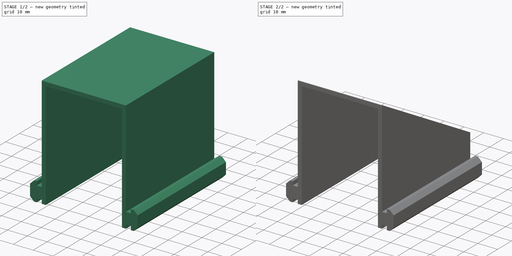
[diagram: build sequence overview — one tinted view per stage of 2, left to right]
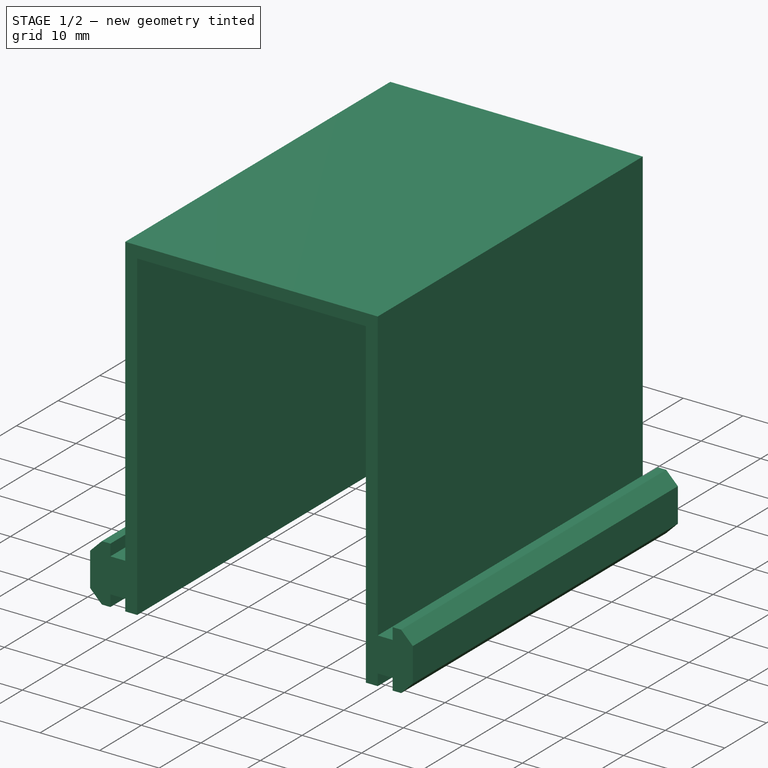
[diagram: stage 1 of 2 — iso view after this stage's code; geometry added in this stage tinted green]
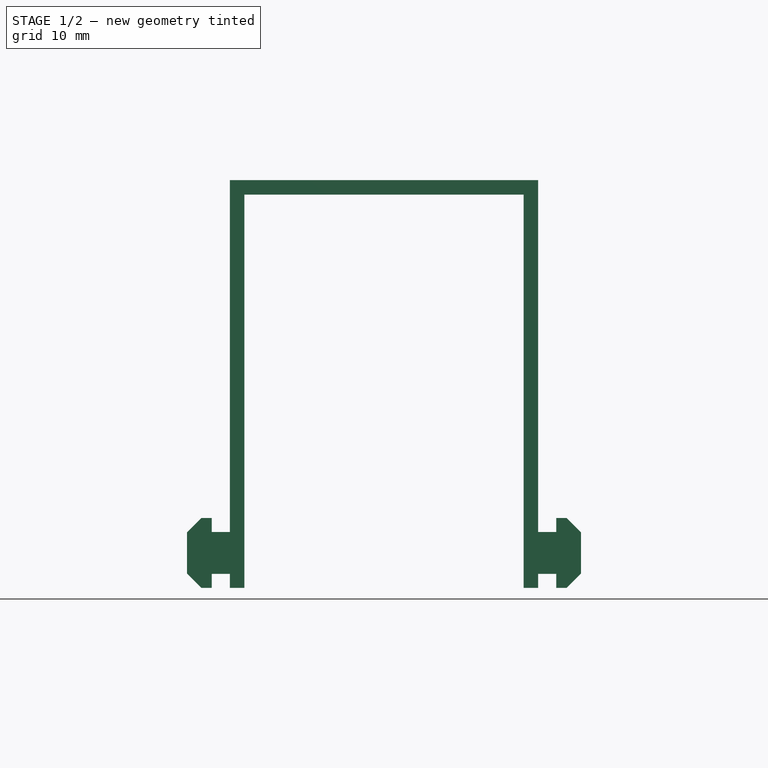
[diagram: stage 1 of 2 — front view after this stage's code; geometry added in this stage tinted green]
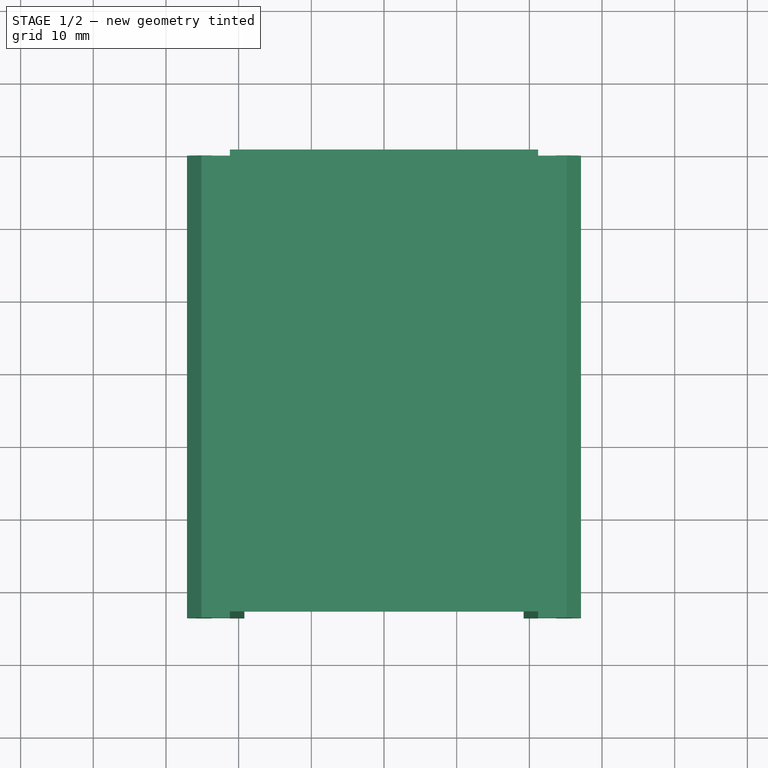
[diagram: stage 1 of 2 — top view after this stage's code; geometry added in this stage tinted green]
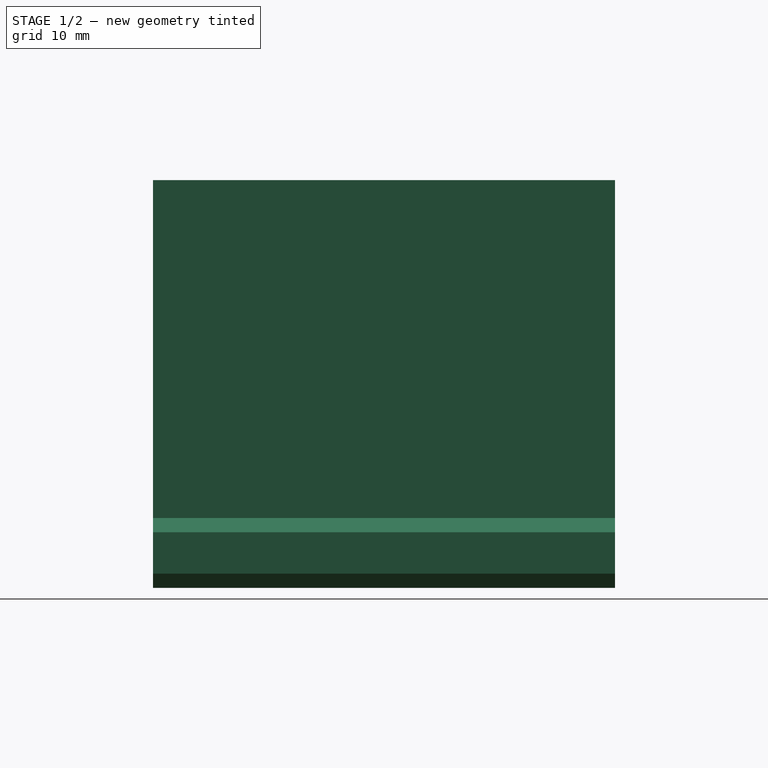
[diagram: stage 1 of 2 — right view after this stage's code; geometry added in this stage tinted green]
FCSTD DOCUMENT  (FreeCAD 1.0R39109 (Git))
Label: 06 Screen Mount Rail
License: All rights reserved
LicenseURL: https://en.wikipedia.org/wiki/All_rights_reserved
objects: Sketcher::SketchObject×2, PartDesign::Pad×1, PartDesign::Pocket×1, PartDesign::Body×1
note: 11 computed .brp shape members not serialized (recipe doc carries the construction recipe); baked Part::Feature solids carry a one-line shape summary decoded from their .brp

FEATURE [Sketcher::SketchObject] Sketch
  ArcFitTolerance = 1e-06
  AttachmentSupport = -> [XZ_Plane]
  FullyConstrained = true
  MakeInternals = false
  MapMode = 5
  Placement = pos=(0,0,0) rot=(1,0,0;1.5708rad)
  sketch-geometry (40):
    g0: LineSegment StartX=-21.2042 StartY=0 StartZ=0 EndX=-21.2042 EndY=1.93 EndZ=0
    g1: LineSegment StartX=-21.2042 StartY=1.93 StartZ=0 EndX=-23.7042 EndY=1.93 EndZ=0
    g2: LineSegment StartX=-23.7042 StartY=1.93 StartZ=0 EndX=-23.7042 EndY=0 EndZ=0
    g3: LineSegment StartX=-23.7042 StartY=0 StartZ=0 EndX=-25.1342 EndY=0 EndZ=0
    g4: LineSegment StartX=-25.1342 StartY=0 StartZ=0 EndX=-27.1 EndY=1.96576 EndZ=0
    g5: LineSegment StartX=-27.1 StartY=1.96576 StartZ=0 EndX=-27.1 EndY=7.65576 EndZ=0
    g6: LineSegment StartX=-27.1 StartY=7.65576 StartZ=0 EndX=-25.1342 EndY=9.62151 EndZ=0
    g7: LineSegment StartX=-25.1342 StartY=9.62151 StartZ=0 EndX=-23.7042 EndY=9.62151 EndZ=0
    g8: LineSegment StartX=-23.7042 StartY=9.62151 StartZ=0 EndX=-23.7042 EndY=7.69151 EndZ=0
    g9: LineSegment StartX=-23.7042 StartY=7.69151 StartZ=0 EndX=-21.2042 EndY=7.69151 EndZ=0
    g10: LineSegment StartX=-21.2042 StartY=7.69151 StartZ=0 EndX=-21.2042 EndY=9.62 EndZ=0
    g11: LineSegment StartX=-21.2042 StartY=9.62 StartZ=0 EndX=-19.2042 EndY=9.62 EndZ=0
    g12: LineSegment StartX=-19.2042 StartY=9.62 StartZ=0 EndX=-19.2042 EndY=0 EndZ=0
    g13: LineSegment StartX=-19.2042 StartY=0 StartZ=0 EndX=-21.2042 EndY=0 EndZ=0
    g14: LineSegment StartX=19.2042 StartY=9.62 StartZ=0 EndX=19.2042 EndY=0 EndZ=0
    g15: LineSegment StartX=19.2042 StartY=0 StartZ=0 EndX=21.2042 EndY=0 EndZ=0
    g16: LineSegment StartX=21.2042 StartY=0 StartZ=0 EndX=21.2042 EndY=1.93 EndZ=0
    g17: LineSegment StartX=21.2042 StartY=1.93 StartZ=0 EndX=23.7042 EndY=1.93 EndZ=0
    g18: LineSegment StartX=23.7042 StartY=1.93 StartZ=0 EndX=23.7042 EndY=0 EndZ=0
    g19: LineSegment StartX=23.7042 StartY=0 StartZ=0 EndX=25.1342 EndY=0 EndZ=0
    g20: LineSegment StartX=25.1342 StartY=0 StartZ=0 EndX=27.1 EndY=1.96576 EndZ=0
    g21: LineSegment StartX=27.1 StartY=1.96576 StartZ=0 EndX=27.1 EndY=7.65576 EndZ=0
    g22: LineSegment StartX=27.1 StartY=7.65576 StartZ=0 EndX=25.1342 EndY=9.62151 EndZ=0
    g23: LineSegment StartX=25.1342 StartY=9.62151 StartZ=0 EndX=23.7042 EndY=9.62151 EndZ=0
    g24: LineSegment StartX=23.7042 StartY=9.62151 StartZ=0 EndX=23.7042 EndY=7.69151 EndZ=0
    g25: LineSegment StartX=23.7042 StartY=7.69151 StartZ=0 EndX=21.2042 EndY=7.69151 EndZ=0
    g26: LineSegment StartX=21.2042 StartY=7.69151 StartZ=0 EndX=21.2042 EndY=9.62 EndZ=0
    g27: LineSegment StartX=21.2042 StartY=9.62 StartZ=0 EndX=19.2042 EndY=9.62 EndZ=0
    g28: LineSegment StartX=19.2042 StartY=56.12 StartZ=0 EndX=19.2042 EndY=9.62 EndZ=0
    g29: LineSegment StartX=19.2042 StartY=9.62 StartZ=0 EndX=21.2042 EndY=9.62 EndZ=0
    g30: LineSegment StartX=21.2042 StartY=9.62 StartZ=0 EndX=21.2042 EndY=56.12 EndZ=0
    g31: LineSegment StartX=21.2042 StartY=56.12 StartZ=0 EndX=19.2042 EndY=56.12 EndZ=0
    g32: LineSegment StartX=-21.2042 StartY=9.62 StartZ=0 EndX=-19.2042 EndY=9.62 EndZ=0
    g33: LineSegment StartX=-19.2042 StartY=9.62 StartZ=0 EndX=-19.2042 EndY=56.12 EndZ=0
    g34: LineSegment StartX=-19.2042 StartY=56.12 StartZ=0 EndX=-21.2042 EndY=56.12 EndZ=0
    g35: LineSegment StartX=-21.2042 StartY=56.12 StartZ=0 EndX=-21.2042 EndY=9.62 EndZ=0
    g36: LineSegment StartX=-19.2042 StartY=56.12 StartZ=0 EndX=19.2042 EndY=56.12 EndZ=0
    g37: LineSegment StartX=19.2042 StartY=56.12 StartZ=0 EndX=19.2042 EndY=54.12 EndZ=0
    g38: LineSegment StartX=19.2042 StartY=54.12 StartZ=0 EndX=-19.2042 EndY=54.12 EndZ=0
    g39: LineSegment StartX=-19.2042 StartY=54.12 StartZ=0 EndX=-19.2042 EndY=56.12 EndZ=0
  constraints (117):
    c: PointOnObject(g0,g-1)
    c: Vertical(g0)
    c: Coincident(g0,g1)
    c: Coincident(g1,g2)
    c: Vertical(g2)
    c: Coincident(g2,g3)
    c: PointOnObject(g3,g-1)
    c: Coincident(g3,g4)
    c: Coincident(g4,g5)
    c: Vertical(g5)
    c: Coincident(g5,g6)
    c: Coincident(g6,g7)
    c: Horizontal(g7)
    c: Coincident(g7,g8)
    c: Vertical(g8)
    c: Coincident(g8,g9)
    c: Horizontal(g9)
    c: Coincident(g9,g10)
    c: Horizontal(g11)
    c: Coincident(g11,g12)
    c: Coincident(g12,g13)
    c: Coincident(g13,g0)
    c: Horizontal(g13)
    c: Vertical(g12)
    c: Vertical(g10)
    c: Horizontal(g1)
    c: Horizontal(g3)
    c: Distance(g13) = 2
    c: Distance(g11) = 2
    c: Distance(g0) = 1.93
    c: Distance(g1) = 2.5
    c: Distance(g9) = 2.5
    c: Distance(g3) = 1.43
    c: Distance(g7) = 1.43
    c: Distance(g4) = 2.78
    c: Distance(g6) = 2.78
    c: Distance(g5) = 5.69
    c: Angle(g-1,g6) = 0.785398
    c: DistanceX(g4,g-1) = 27.1
    c: PointOnObject(g14,g-1)
    c: Vertical(g14)
    c: Coincident(g14,g15)
    c: PointOnObject(g15,g-1)
    c: Coincident(g15,g16)
    c: Coincident(g16,g17)
    c: Horizontal(g17)
    c: Coincident(g17,g18)
    c: PointOnObject(g18,g-1)
    c: Vertical(g18)
    c: Coincident(g18,g19)
    c: PointOnObject(g19,g-1)
    c: Coincident(g19,g20)
    c: Coincident(g20,g21)
    c: Vertical(g21)
    c: Coincident(g21,g22)
    c: Coincident(g22,g23)
    c: Coincident(g23,g24)
    c: Coincident(g24,g25)
    c: Coincident(g25,g26)
    c: Coincident(g26,g27)
    c: Coincident(g27,g14)
    c: Horizontal(g25)
    c: Horizontal(g27)
    c: Horizontal(g23)
    c: Vertical(g16)
    c: Vertical(g26)
    c: Vertical(g24)
    c: Angle(g20,g-1) = 2.35619
    c: Angle(g22,g-1) = 0.785398
    c: Distance(g15) = 2
    c: Distance(g27) = 2
    c: Distance(g25) = 2.5
    c: Distance(g17) = 2.5
    c: Distance(g24) = 1.93
    c: Distance(g18) = 1.93
    c: Distance(g22) = 2.78
    c: Distance(g20) = 2.78
    c: Distance(g19) = 1.43
    c: Distance(g21) = 5.69
    c: Distance(g14) = 9.62
    c: DistanceX(g-1,g20) = 27.1
    c: Coincident(g28,g29)
    c: Coincident(g29,g30)
    c: Coincident(g30,g31)
    c: Coincident(g31,g28)
    c: Vertical(g28)
    c: Vertical(g30)
    c: Horizontal(g29)
    c: Horizontal(g31)
    c: Distance(g28,g30) = 2
    c: Distance(g29,g31) = 46.5
    c: Coincident(g29,g26)
    c: Distance(g8) = 1.93
    c: DistanceY(g12,g12) = 9.62
    c: Coincident(g10,g11)
    c: Coincident(g32,g33)
    c: Coincident(g33,g34)
    c: Coincident(g34,g35)
    c: Coincident(g35,g32)
    c: Horizontal(g32)
    c: Horizontal(g34)
    c: Vertical(g33)
    c: Vertical(g35)
    c: Distance(g33,g35) = 2
    c: Distance(g32,g34) = 46.5
    c: DistanceY(g-1,g34) = 56.12
    c: DistanceX(g10,g32) = 0
    c: Coincident(g33,g36)
    c: Coincident(g36,g28)
    c: Coincident(g36,g37)
    c: PointOnObject(g37,g28)
    c: Coincident(g37,g38)
    c: PointOnObject(g38,g33)
    c: Horizontal(g38)
    c: Coincident(g38,g39)
    c: Coincident(g39,g36)
    c: Distance(g38,g33) = 2
FEATURE [PartDesign::Pad] Pad
  Direction = (0,-1,2e-16)
  Length = 63.57
  Length2 = 10
  Placement = pos=(0,0,0) rot=(1,0,0;1.5708rad)
  Profile = -> Sketch
  ReferenceAxis = -> Sketch [N_Axis]
  Refine = true
  Suppressed = false
  Type = 0
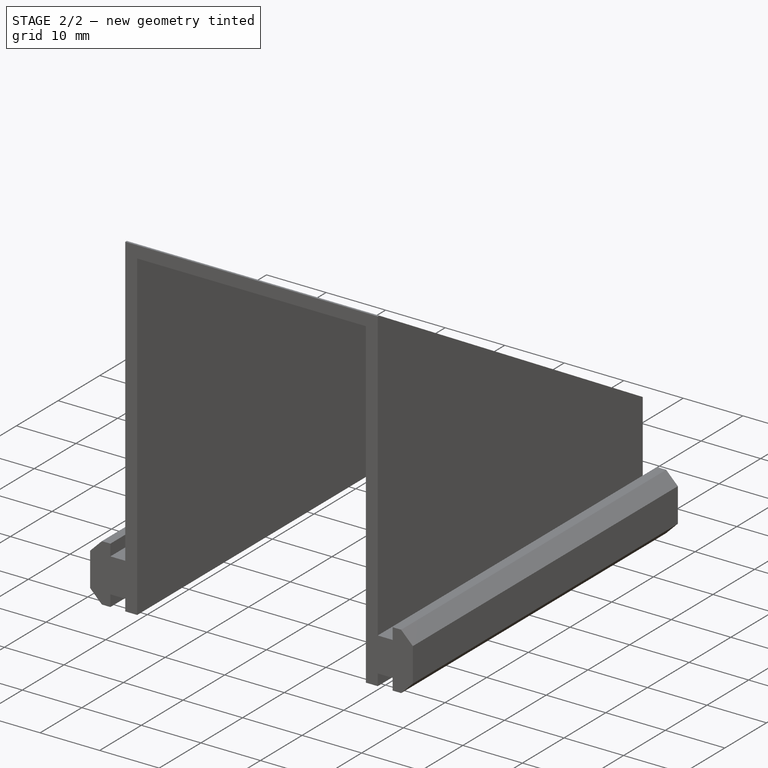
[diagram: stage 2 of 2 — iso view after this stage's code; geometry added in this stage tinted green]
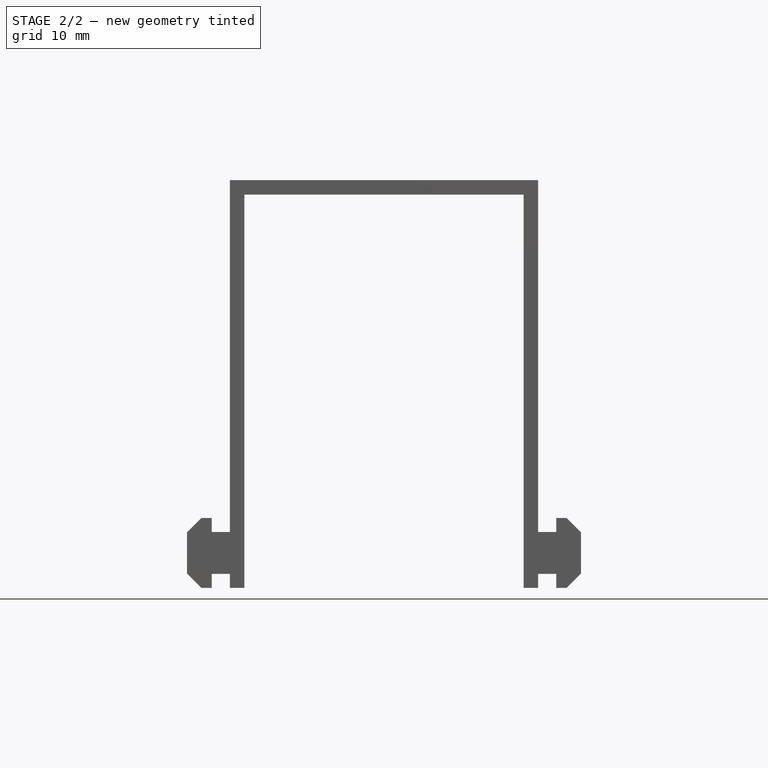
[diagram: stage 2 of 2 — front view after this stage's code; geometry added in this stage tinted green]
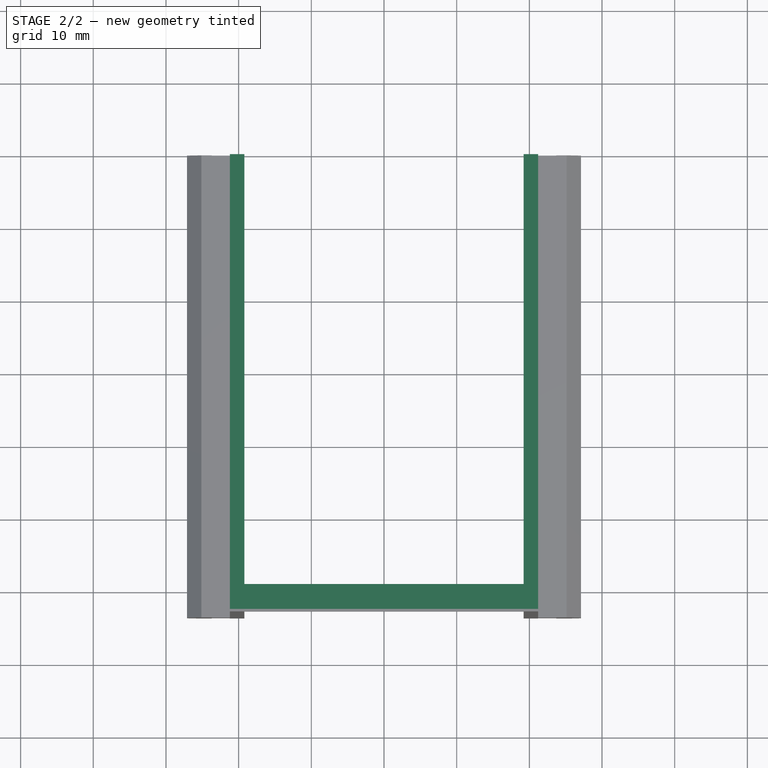
[diagram: stage 2 of 2 — top view after this stage's code; geometry added in this stage tinted green]
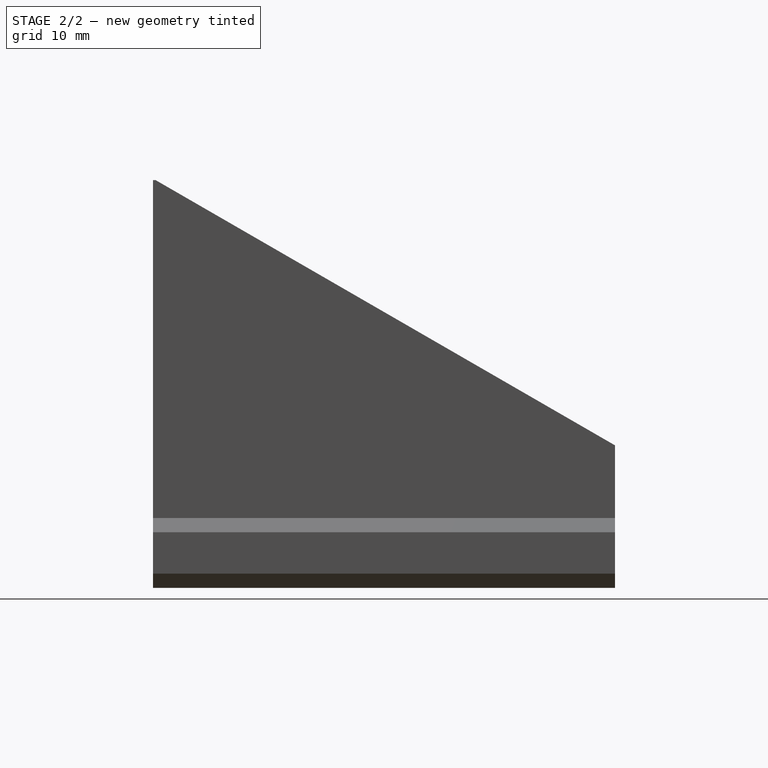
[diagram: stage 2 of 2 — right view after this stage's code; geometry added in this stage tinted green]
FEATURE [Sketcher::SketchObject] Sketch001
  ArcFitTolerance = 1e-06
  AttachmentSupport = -> [Pad]
  FullyConstrained = true
  MakeInternals = false
  MapMode = 5
  Placement = pos=(-21.2042,0,0) rot=(0.707107,0,-0.707107;3.14159rad)
  sketch-geometry (3):
    g0: LineSegment StartX=-19.62 StartY=0 StartZ=0 EndX=-56.62 EndY=64.0859 EndZ=0
    g1: LineSegment StartX=-19.62 StartY=0 StartZ=0 EndX=-56.62 EndY=0 EndZ=0
    g2: LineSegment StartX=-56.62 StartY=0 StartZ=0 EndX=-56.62 EndY=64.0859 EndZ=0
  constraints (9):
    c: Distance(g0) = 74
    c: PointOnObject(g0,g-1)
    c: DistanceX(g0,g-1) = 19.62
    c: Angle(g-1,g0) = 2.0944
    c: Coincident(g1,g0)
    c: PointOnObject(g1,g-1)
    c: Coincident(g2,g1)
    c: Coincident(g2,g0)
    c: Vertical(g2)
FEATURE [PartDesign::Pocket] Pocket
  BaseFeature = -> Pad
  Direction = (1,0,2e-16)
  Length = 5
  Length2 = 5
  Placement = pos=(0,0,0) rot=(1,0,0;1.5708rad)
  Profile = -> Sketch001
  ReferenceAxis = -> Sketch001 [N_Axis]
  Refine = true
  Suppressed = false
  Type = 1
FEATURE [PartDesign::Body] Body
  AllowCompound = false
  Group = -> [Sketch,Pad,Sketch001,Pocket]
  Origin = -> Origin
  Tip = -> Pocket
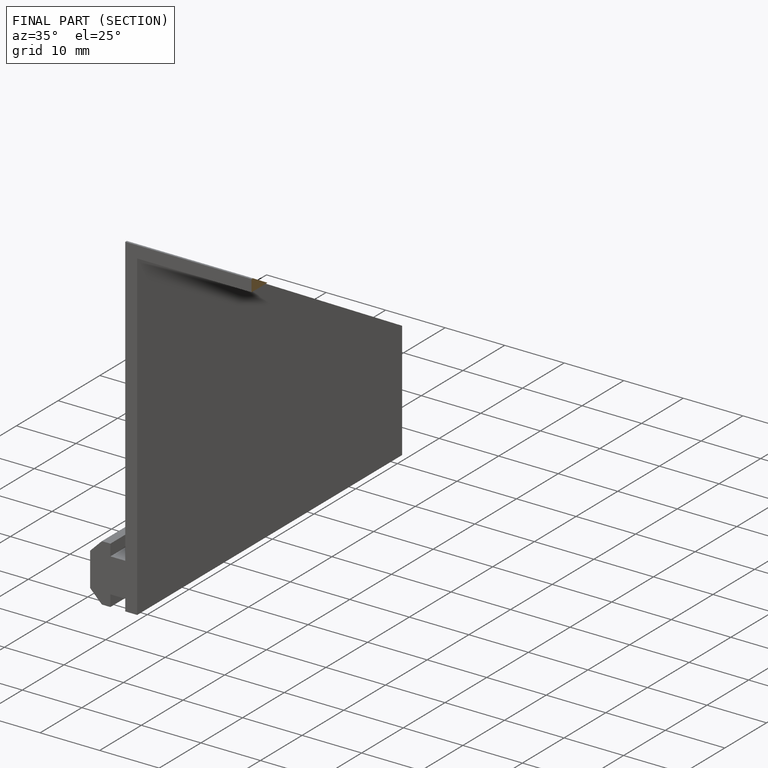
[diagram: finished part — half-section view (interior)]
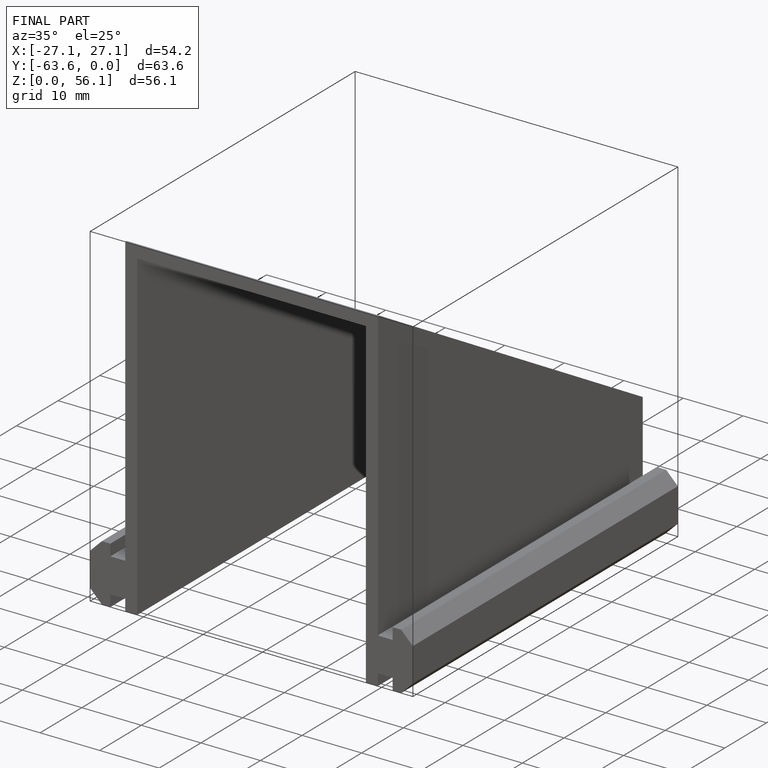
[diagram: finished part — iso view with bounding-box wireframe]
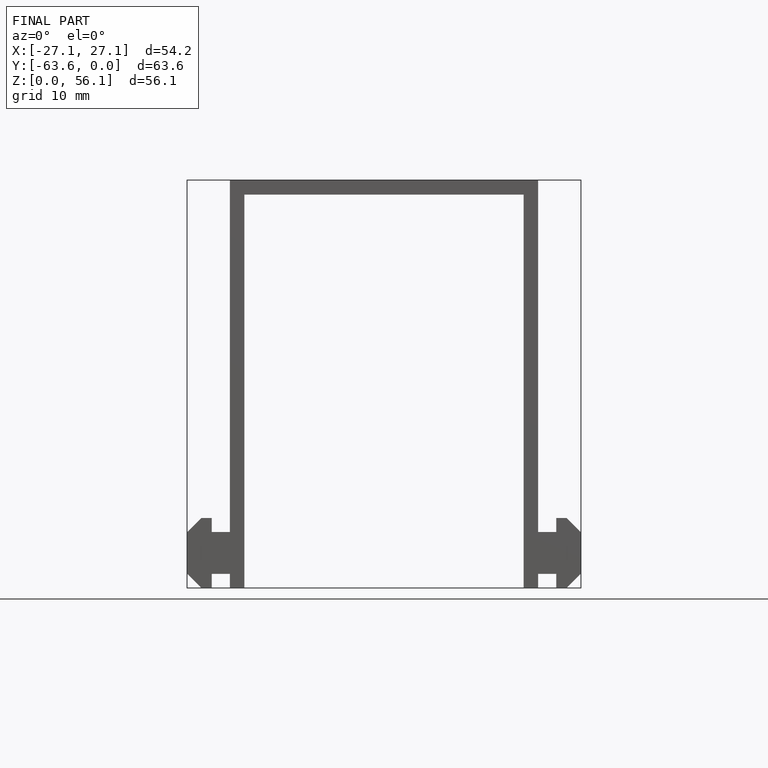
[diagram: finished part — front view with bounding-box wireframe]
